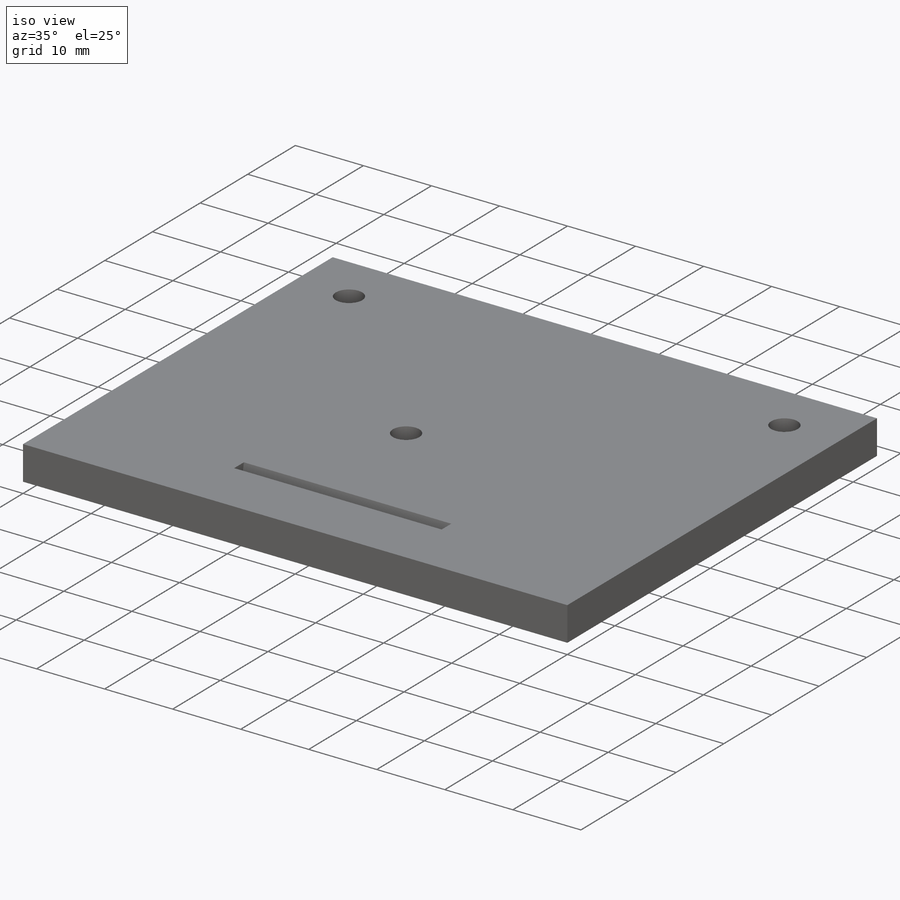
[diagram: iso view]
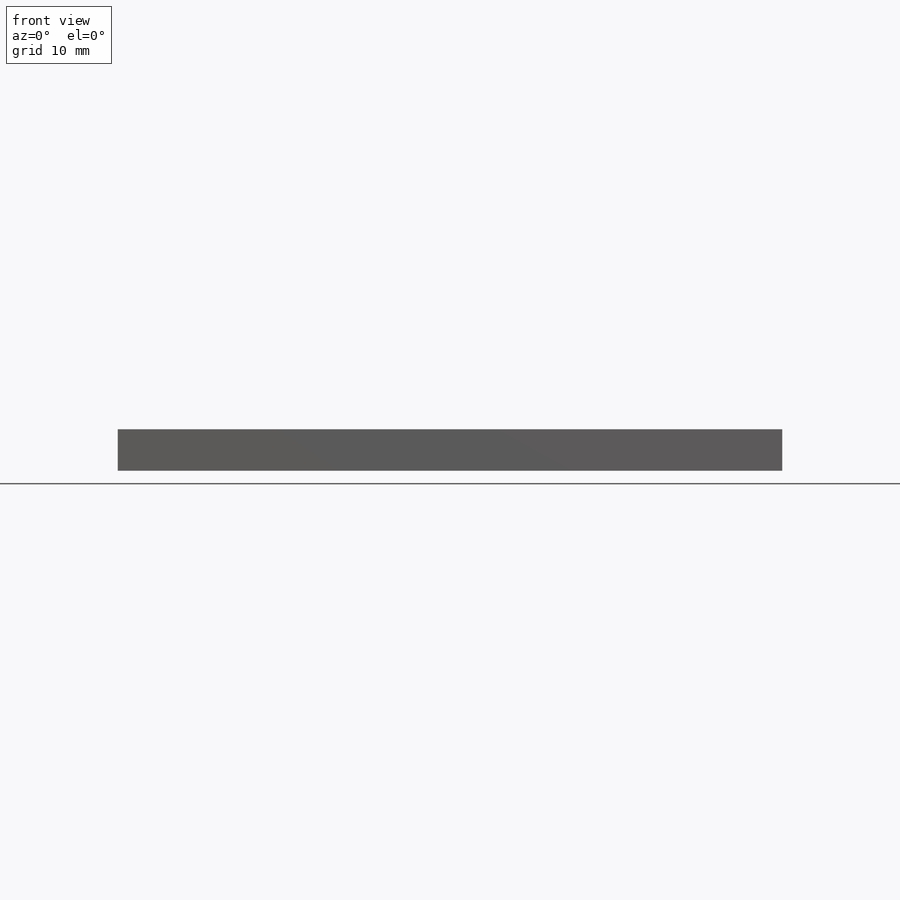
[diagram: front view]
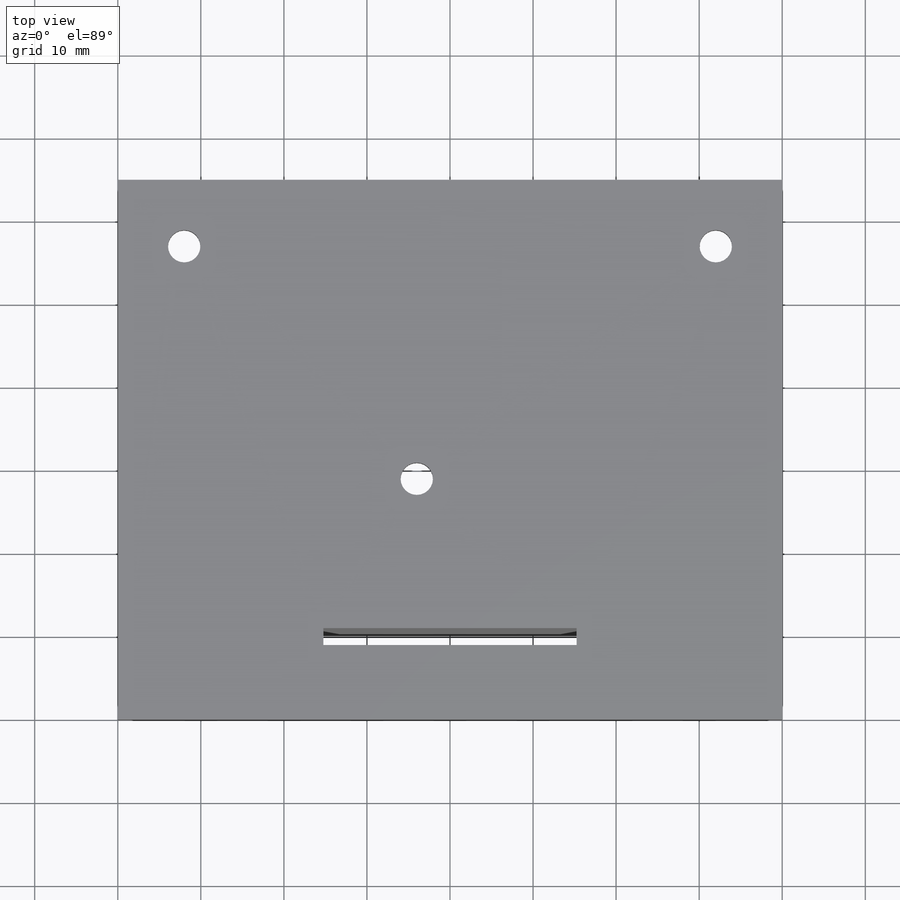
[diagram: top view]
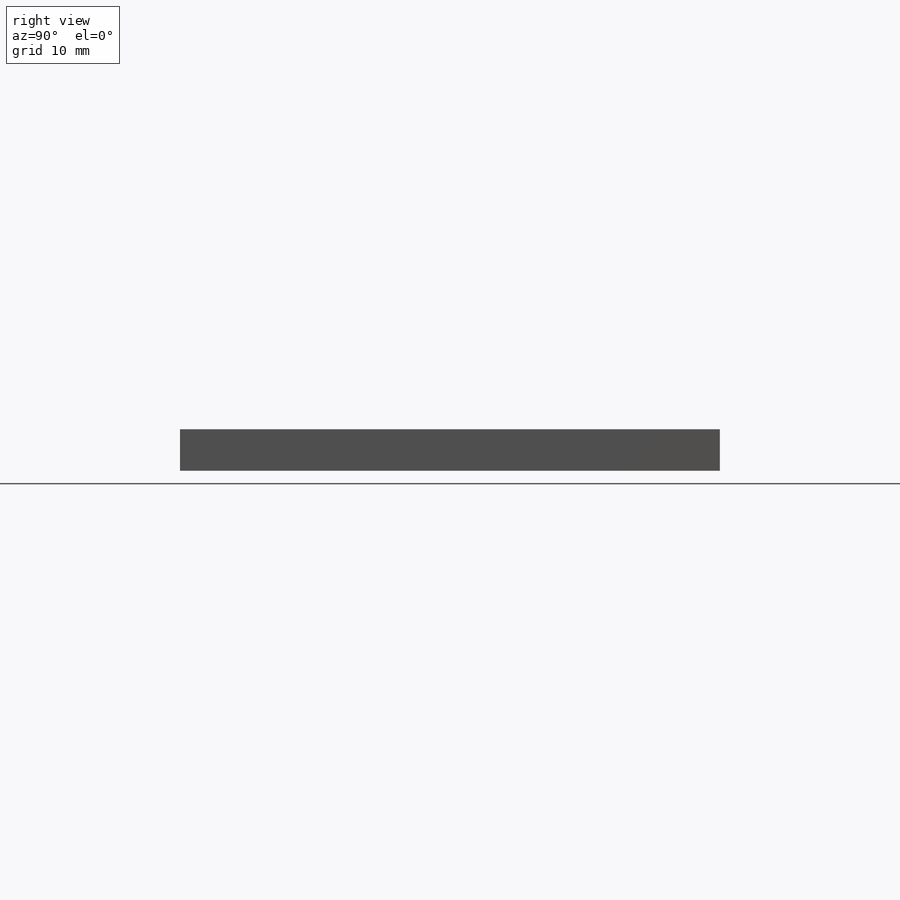
[diagram: right view]
SOLIDWORKS PART (.sldprt)
format: sldprt  version: not decoded by parser v0  size: 205,312 bytes
history: native  units: mm
features: sketch x7, plane x5, material x1, extrude x1, hole x1, cut_extrude x1 (+8 scaffold rows collapsed)
feature tree (24):
  scaffold x8  (default folders/planes/origin — collapsed)
  material  "Matériau <non spécifié>"
  plane  "Plan de face"
  plane  "Plan de dessus"
  plane  "Plan de droite"
  sketch  "Esquisse1"  dims[D1=80.0mm D2=65.0mm]
  extrude  "Boss.-Extru.1"  Depth=5mm
  sketch  "Esquisse2"  dims[D1=28.0mm D2=28.0mm D3=15.0mm D4=15.0mm D5=8.0mm D6=8.0mm]
  hole  "Dégagement M3.51"  Diameter=3.9mm Depth=5mm
  sketch  "Esquisse4"
  sketch  "Esquisse3"  dims[hole-wizard template sketch: 60 standard entries collapsed; hole parameters kept: c18.Profondeur du perçage jusqu'au prochain=5.0mm]
  sketch  "Esquisse5"  dims[D1=38.0mm D2=38.0mm D3=8.0mm D4=30.0mm D5=~7.438931mm]
  sketch  "Esquisse6"  dims[c1.D1=~4.901726mm c2.D1=10.0deg]
  plane  "Plan1"
  plane  "Plan2"
  sketch  "Esquisse7"  dims[D1=2.0mm D2=30.5mm]
  cut_extrude  "Enlèv. mat.-Extru.1"  [1 undecoded]
decode coverage: 8 of 10 modeling features carry decoded parameters
note: ~ marks probable driven/reference dimensions
note: 1 parameter value undecoded
note: suppression state not decoded; provenance and decode notes live in map.json
